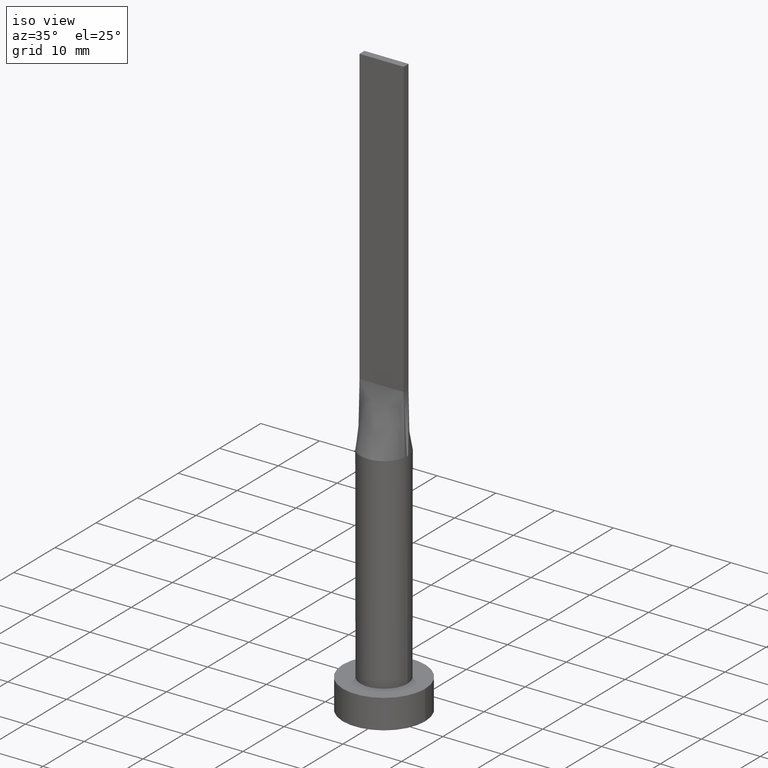
[diagram: clean part render]
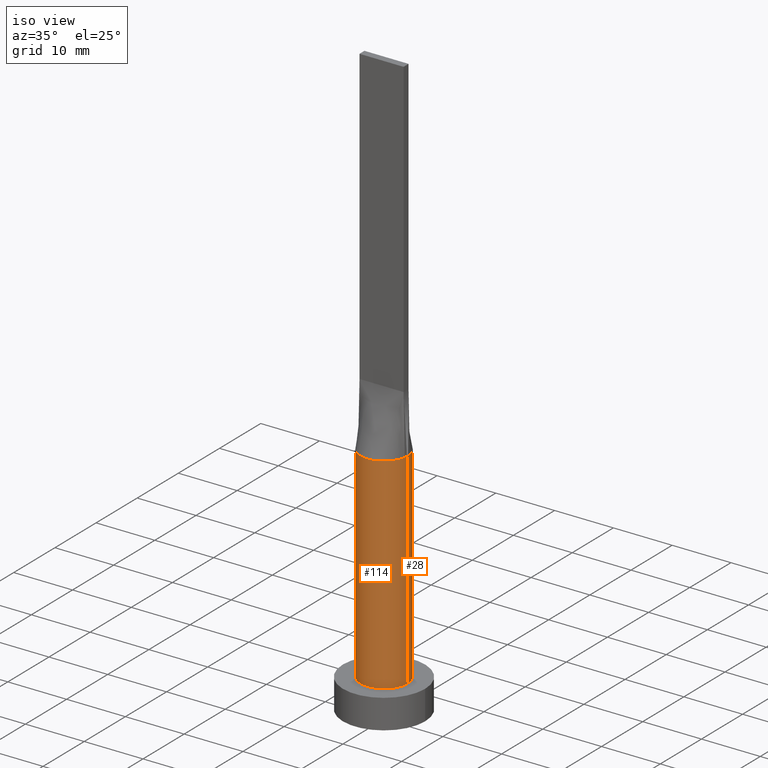
[diagram: same view with one multi-face feature highlighted, each face labeled with its STEP entity id]
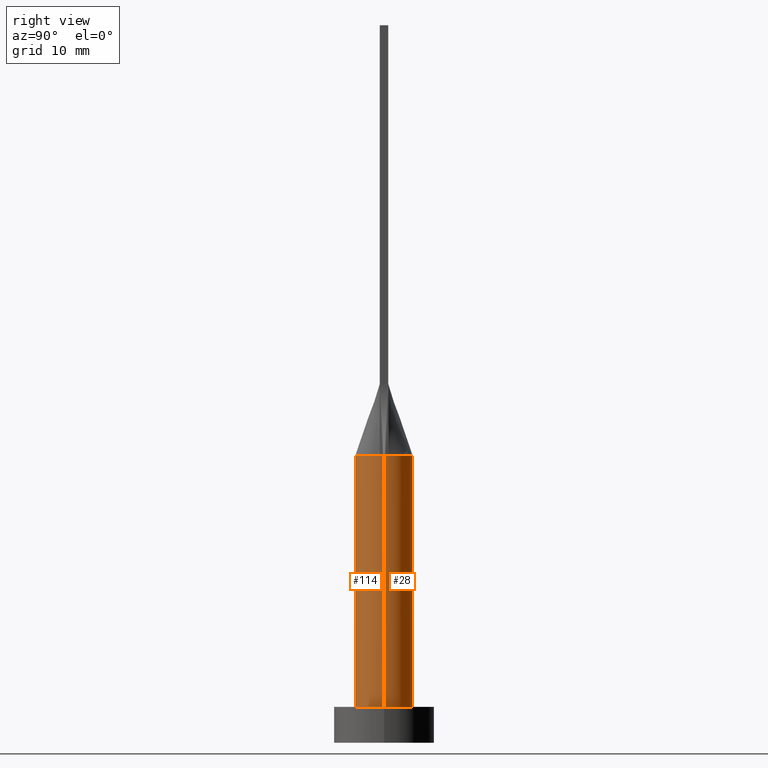
[diagram: same view with one multi-face feature highlighted, each face labeled with its STEP entity id]
A machine part, iso view. The highlighted faces form ONE feature: a constant-radius fillet chain: 2 tangent blend faces with common blend radius 4 mm. The faces share edges in the B-rep.
A second angle (right view) of the same feature is appended — it is thin or edge-on in the first view.
Their STEP definitions:
[1] entity #114 (Cylinder):
#7 = EDGE_CURVE ( 'NONE', #512, #522, #333, .T. ) ;
#11 = EDGE_LOOP ( 'NONE', ( #253, #124, #89, #259, #195, #507 ) ) ;
#14 = AXIS2_PLACEMENT_3D ( 'NONE', #97, #454, #223 ) ;
#31 = CARTESIAN_POINT ( 'NONE',  ( 0.000000000000000000, 0.000000000000000000, 40.00000000000000000 ) ) ;
#32 = CARTESIAN_POINT ( 'NONE',  ( 0.000000000000000000, 0.000000000000000000, 40.00000000000000000 ) ) ;
#41 = CIRCLE ( 'NONE', #76, 4.000000000000000000 ) ;
#44 = EDGE_CURVE ( 'NONE', #306, #360, #427, .T. ) ;
#76 = AXIS2_PLACEMENT_3D ( 'NONE', #255, #482, #196 ) ;
#85 = AXIS2_PLACEMENT_3D ( 'NONE', #32, #248, #106 ) ;
#88 = VECTOR ( 'NONE', #431, 1000.000000000000000 ) ;
#89 = ORIENTED_EDGE ( 'NONE', *, *, #565, .F. ) ;
#97 = CARTESIAN_POINT ( 'NONE',  ( 0.000000000000000000, 0.000000000000000000, 5.000000000000000000 ) ) ;
#104 = CARTESIAN_POINT ( 'NONE',  ( 3.950116941581656604, -0.6320178829360038053, 40.00000000000000000 ) ) ;
#106 = DIRECTION ( 'NONE',  ( 1.000000000000000000, 9.769962616701377556E-15, 0.000000000000000000 ) ) ;
#109 = CARTESIAN_POINT ( 'NONE',  ( -4.000000000000000000, 0.000000000000000000, 40.00000000000000000 ) ) ;
#110 = CARTESIAN_POINT ( 'NONE',  ( 4.000000000000000000, 4.898587196589412829E-16, 40.00000000000000000 ) ) ;
#114 = ADVANCED_FACE ( 'NONE', ( #152 ), #561, .T. ) ;
#124 = ORIENTED_EDGE ( 'NONE', *, *, #44, .F. ) ;
#125 = CARTESIAN_POINT ( 'NONE',  ( 3.999842262273348936, 9.852009208038395466E-16, 40.00000000000000000 ) ) ;
#152 = FACE_OUTER_BOUND ( 'NONE', #11, .T. ) ;
#154 = CARTESIAN_POINT ( 'NONE',  ( 0.000000000000000000, 0.000000000000000000, 40.00000000000000000 ) ) ;
#156 = CARTESIAN_POINT ( 'NONE',  ( -4.000000000000000000, 0.000000000000000000, 5.000000000000000000 ) ) ;
#159 = CIRCLE ( 'NONE', #232, 4.000000000000000000 ) ;
#190 = DIRECTION ( 'NONE',  ( -0.000000000000000000, -0.000000000000000000, -1.000000000000000000 ) ) ;
#195 = ORIENTED_EDGE ( 'NONE', *, *, #7, .T. ) ;
#196 = DIRECTION ( 'NONE',  ( 1.000000000000000000, 0.000000000000000000, 0.000000000000000000 ) ) ;
#197 = DIRECTION ( 'NONE',  ( 0.000000000000000000, 0.000000000000000000, 1.000000000000000000 ) ) ;
#208 = EDGE_CURVE ( 'NONE', #522, #457, #281, .T. ) ;
#223 = DIRECTION ( 'NONE',  ( 1.000000000000000000, 0.000000000000000000, 0.000000000000000000 ) ) ;
#232 = AXIS2_PLACEMENT_3D ( 'NONE', #31, #197, #568 ) ;
#244 = CARTESIAN_POINT ( 'NONE',  ( -3.950111798046394007, -0.6320171791297864994, 40.00000000000000000 ) ) ;
#248 = DIRECTION ( 'NONE',  ( 0.000000000000000000, 0.000000000000000000, 1.000000000000000000 ) ) ;
#253 = ORIENTED_EDGE ( 'NONE', *, *, #511, .F. ) ;
#255 = CARTESIAN_POINT ( 'NONE',  ( 0.000000000000000000, 0.000000000000000000, 40.00000000000000000 ) ) ;
#259 = ORIENTED_EDGE ( 'NONE', *, *, #365, .F. ) ;
#281 = CIRCLE ( 'NONE', #14, 4.000000000000000000 ) ;
#306 = VERTEX_POINT ( 'NONE', #104 ) ;
#333 = LINE ( 'NONE', #109, #541 ) ;
#360 = VERTEX_POINT ( 'NONE', #125 ) ;
#365 = EDGE_CURVE ( 'NONE', #512, #481, #159, .T. ) ;
#369 = CARTESIAN_POINT ( 'NONE',  ( 4.000000000000000000, 4.898587196589412829E-16, 5.000000000000000000 ) ) ;
#385 = LINE ( 'NONE', #110, #88 ) ;
#424 = DIRECTION ( 'NONE',  ( -1.000000000000000000, 0.000000000000000000, 0.000000000000000000 ) ) ;
#427 = CIRCLE ( 'NONE', #85, 4.000000000000000000 ) ;
#431 = DIRECTION ( 'NONE',  ( -0.000000000000000000, -0.000000000000000000, -1.000000000000000000 ) ) ;
#454 = DIRECTION ( 'NONE',  ( 0.000000000000000000, 0.000000000000000000, 1.000000000000000000 ) ) ;
#457 = VERTEX_POINT ( 'NONE', #369 ) ;
#477 = CARTESIAN_POINT ( 'NONE',  ( -3.999842262273348048, -9.740943882706926662E-16, 40.00000000000000000 ) ) ;
#481 = VERTEX_POINT ( 'NONE', #244 ) ;
#482 = DIRECTION ( 'NONE',  ( 0.000000000000000000, 0.000000000000000000, 1.000000000000000000 ) ) ;
#503 = AXIS2_PLACEMENT_3D ( 'NONE', #154, #572, #424 ) ;
#507 = ORIENTED_EDGE ( 'NONE', *, *, #208, .T. ) ;
#511 = EDGE_CURVE ( 'NONE', #360, #457, #385, .T. ) ;
#512 = VERTEX_POINT ( 'NONE', #477 ) ;
#522 = VERTEX_POINT ( 'NONE', #156 ) ;
#541 = VECTOR ( 'NONE', #190, 1000.000000000000000 ) ;
#561 = CYLINDRICAL_SURFACE ( 'NONE', #503, 4.000000000000000000 ) ;
#565 = EDGE_CURVE ( 'NONE', #481, #306, #41, .T. ) ;
#568 = DIRECTION ( 'NONE',  ( 1.000000000000000000, 0.000000000000000000, 0.000000000000000000 ) ) ;
#572 = DIRECTION ( 'NONE',  ( -0.000000000000000000, -0.000000000000000000, -1.000000000000000000 ) ) ;
[2] entity #28 (Cylinder):
#7 = EDGE_CURVE ( 'NONE', #512, #522, #333, .T. ) ;
#28 = ADVANCED_FACE ( 'NONE', ( #387 ), #252, .T. ) ;
#30 = ORIENTED_EDGE ( 'NONE', *, *, #7, .F. ) ;
#35 = CARTESIAN_POINT ( 'NONE',  ( 1.134810363096318664, 3.874001625491799050, 40.00000000000000000 ) ) ;
#37 = CARTESIAN_POINT ( 'NONE',  ( 0.5684794080625145130, 4.000000000000000000, 39.99999999999999289 ) ) ;
#70 = CARTESIAN_POINT ( 'NONE',  ( -3.897760447583618504, 0.9569750049467115049, 40.00000000000000000 ) ) ;
#72 = DIRECTION ( 'NONE',  ( -1.000000000000000000, 0.000000000000000000, 0.000000000000000000 ) ) ;
#80 = DIRECTION ( 'NONE',  ( 0.000000000000000000, 0.000000000000000000, 1.000000000000000000 ) ) ;
#88 = VECTOR ( 'NONE', #431, 1000.000000000000000 ) ;
#109 = CARTESIAN_POINT ( 'NONE',  ( -4.000000000000000000, 0.000000000000000000, 40.00000000000000000 ) ) ;
#110 = CARTESIAN_POINT ( 'NONE',  ( 4.000000000000000000, 4.898587196589412829E-16, 40.00000000000000000 ) ) ;
#116 = CARTESIAN_POINT ( 'NONE',  ( 3.800365609718893367, 1.311488165564687058, 40.00000000000000711 ) ) ;
#118 = DIRECTION ( 'NONE',  ( 0.000000000000000000, 0.000000000000000000, 1.000000000000000000 ) ) ;
#120 = ORIENTED_EDGE ( 'NONE', *, *, #555, .F. ) ;
#121 = CARTESIAN_POINT ( 'NONE',  ( -3.800365609718893811, 1.311488165564686392, 40.00000000000000000 ) ) ;
#125 = CARTESIAN_POINT ( 'NONE',  ( 3.999842262273348936, 9.852009208038395466E-16, 40.00000000000000000 ) ) ;
#128 = EDGE_CURVE ( 'NONE', #457, #522, #500, .T. ) ;
#130 = VERTEX_POINT ( 'NONE', #294 ) ;
#153 = DIRECTION ( 'NONE',  ( 1.000000000000000000, 0.000000000000000000, 0.000000000000000000 ) ) ;
#155 = VERTEX_POINT ( 'NONE', #422 ) ;
#156 = CARTESIAN_POINT ( 'NONE',  ( -4.000000000000000000, 0.000000000000000000, 5.000000000000000000 ) ) ;
#161 = CARTESIAN_POINT ( 'NONE',  ( 2.553164211252348714, 3.116528153703943538, 40.00000000000000000 ) ) ;
#169 = AXIS2_PLACEMENT_3D ( 'NONE', #376, #524, #72 ) ;
#186 = ORIENTED_EDGE ( 'NONE', *, *, #560, .F. ) ;
#190 = DIRECTION ( 'NONE',  ( -0.000000000000000000, -0.000000000000000000, -1.000000000000000000 ) ) ;
#250 = DIRECTION ( 'NONE',  ( 1.000000000000000000, 0.000000000000000000, 0.000000000000000000 ) ) ;
#252 = CYLINDRICAL_SURFACE ( 'NONE', #169, 4.000000000000000000 ) ;
#284 = CARTESIAN_POINT ( 'NONE',  ( -2.553164211252348714, 3.116528153703943538, 39.99999999999999289 ) ) ;
#289 = CARTESIAN_POINT ( 'NONE',  ( 3.461914487322979017, 2.043998057340944197, 40.00000000000000000 ) ) ;
#294 = CARTESIAN_POINT ( 'NONE',  ( -3.950102418235696522, 0.6320155757311002320, 40.00000000000000000 ) ) ;
#295 = CARTESIAN_POINT ( 'NONE',  ( -1.134810363096319996, 3.874001625491799938, 40.00000000000000711 ) ) ;
#300 = AXIS2_PLACEMENT_3D ( 'NONE', #338, #80, #328 ) ;
#309 = EDGE_LOOP ( 'NONE', ( #120, #484, #448, #30, #498, #186 ) ) ;
#328 = DIRECTION ( 'NONE',  ( 1.000000000000000000, 0.000000000000000000, 0.000000000000000000 ) ) ;
#330 = AXIS2_PLACEMENT_3D ( 'NONE', #389, #382, #250 ) ;
#333 = LINE ( 'NONE', #109, #541 ) ;
#338 = CARTESIAN_POINT ( 'NONE',  ( 0.000000000000000000, 0.000000000000000000, 5.000000000000000000 ) ) ;
#340 = CARTESIAN_POINT ( 'NONE',  ( 0.000000000000000000, 0.000000000000000000, 40.00000000000000000 ) ) ;
#344 = CARTESIAN_POINT ( 'NONE',  ( -0.5684794080625158452, 3.999999999999999112, 39.99999999999999289 ) ) ;
#357 = CIRCLE ( 'NONE', #330, 4.000000000000000000 ) ;
#360 = VERTEX_POINT ( 'NONE', #125 ) ;
#364 = B_SPLINE_CURVE_WITH_KNOTS ( 'NONE', 3,
 ( #526, #378, #116, #289, #425, #161, #580, #35, #37, #344, #295, #532, #284, #523, #471, #121, #70, #567 ),
 .UNSPECIFIED., .F., .F.,
 ( 4, 2, 2, 2, 2, 2, 2, 2, 4 ),
 ( 0.000000000000000000, 0.1249999999999999445, 0.2499999999999998890, 0.3749999999999998335, 0.4999999999999997780, 0.6249999999999997780, 0.7499999999999998890, 0.8749999999999998890, 1.000000000000000000 ),
 .UNSPECIFIED. ) ;
#369 = CARTESIAN_POINT ( 'NONE',  ( 4.000000000000000000, 4.898587196589412829E-16, 5.000000000000000000 ) ) ;
#376 = CARTESIAN_POINT ( 'NONE',  ( 0.000000000000000000, 0.000000000000000000, 40.00000000000000000 ) ) ;
#378 = CARTESIAN_POINT ( 'NONE',  ( 3.897760447583618948, 0.9569750049467118380, 40.00000000000000000 ) ) ;
#382 = DIRECTION ( 'NONE',  ( 0.000000000000000000, 0.000000000000000000, 1.000000000000000000 ) ) ;
#385 = LINE ( 'NONE', #110, #88 ) ;
#387 = FACE_OUTER_BOUND ( 'NONE', #309, .T. ) ;
#389 = CARTESIAN_POINT ( 'NONE',  ( 0.000000000000000000, 0.000000000000000000, 40.00000000000000000 ) ) ;
#422 = CARTESIAN_POINT ( 'NONE',  ( 3.950097303404373150, 0.6320148730971616446, 40.00000000000000000 ) ) ;
#425 = CARTESIAN_POINT ( 'NONE',  ( 3.219262664220058134, 2.422342486356523938, 39.99999999999999289 ) ) ;
#431 = DIRECTION ( 'NONE',  ( -0.000000000000000000, -0.000000000000000000, -1.000000000000000000 ) ) ;
#448 = ORIENTED_EDGE ( 'NONE', *, *, #128, .T. ) ;
#457 = VERTEX_POINT ( 'NONE', #369 ) ;
#471 = CARTESIAN_POINT ( 'NONE',  ( -3.461914487322979905, 2.043998057340944197, 40.00000000000000711 ) ) ;
#477 = CARTESIAN_POINT ( 'NONE',  ( -3.999842262273348048, -9.740943882706926662E-16, 40.00000000000000000 ) ) ;
#484 = ORIENTED_EDGE ( 'NONE', *, *, #511, .T. ) ;
#491 = EDGE_CURVE ( 'NONE', #130, #512, #357, .T. ) ;
#498 = ORIENTED_EDGE ( 'NONE', *, *, #491, .F. ) ;
#500 = CIRCLE ( 'NONE', #300, 4.000000000000000000 ) ;
#511 = EDGE_CURVE ( 'NONE', #360, #457, #385, .T. ) ;
#512 = VERTEX_POINT ( 'NONE', #477 ) ;
#522 = VERTEX_POINT ( 'NONE', #156 ) ;
#523 = CARTESIAN_POINT ( 'NONE',  ( -3.219262664220059023, 2.422342486356523938, 39.99999999999998579 ) ) ;
#524 = DIRECTION ( 'NONE',  ( -0.000000000000000000, -0.000000000000000000, -1.000000000000000000 ) ) ;
#526 = CARTESIAN_POINT ( 'NONE',  ( 3.950097303404373150, 0.6320148730971616446, 40.00000000000000000 ) ) ;
#532 = CARTESIAN_POINT ( 'NONE',  ( -2.127794970397209884, 3.430476893735948440, 39.99999999999999289 ) ) ;
#541 = VECTOR ( 'NONE', #190, 1000.000000000000000 ) ;
#544 = CIRCLE ( 'NONE', #576, 4.000000000000000000 ) ;
#555 = EDGE_CURVE ( 'NONE', #360, #155, #544, .T. ) ;
#560 = EDGE_CURVE ( 'NONE', #155, #130, #364, .T. ) ;
#567 = CARTESIAN_POINT ( 'NONE',  ( -3.950102418235696522, 0.6320155757311002320, 40.00000000000000000 ) ) ;
#576 = AXIS2_PLACEMENT_3D ( 'NONE', #340, #118, #153 ) ;
#580 = CARTESIAN_POINT ( 'NONE',  ( 2.127794970397208107, 3.430476893735948885, 39.99999999999999289 ) ) ;